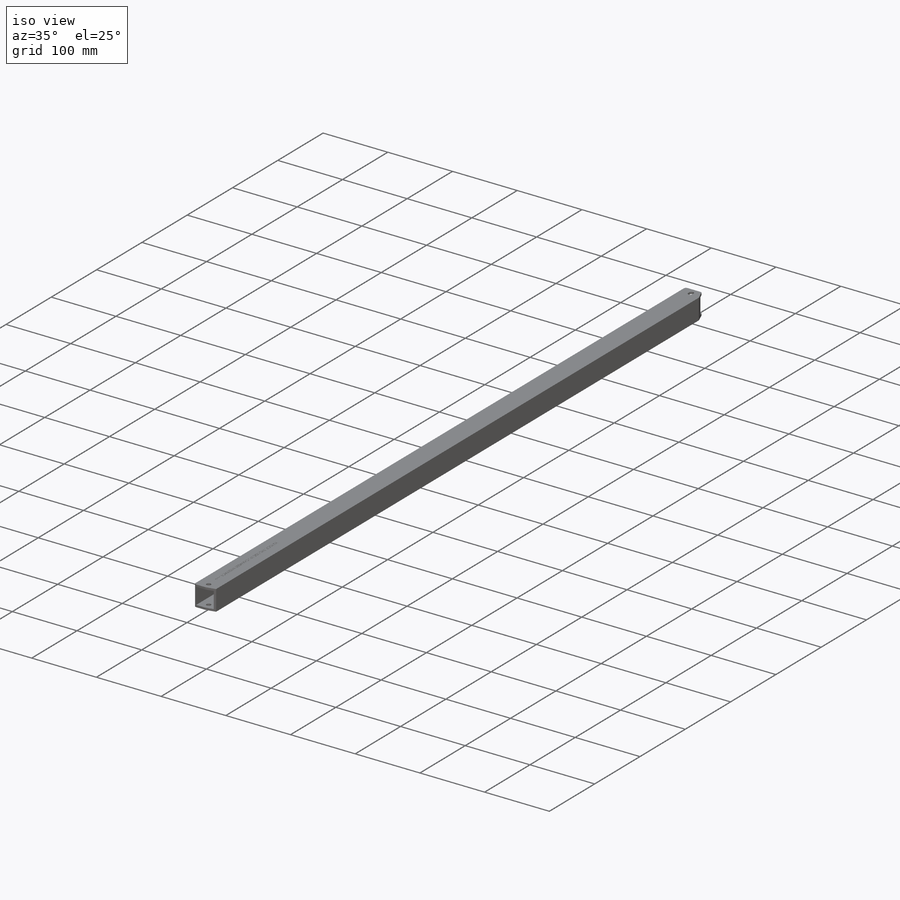
[diagram: iso view]
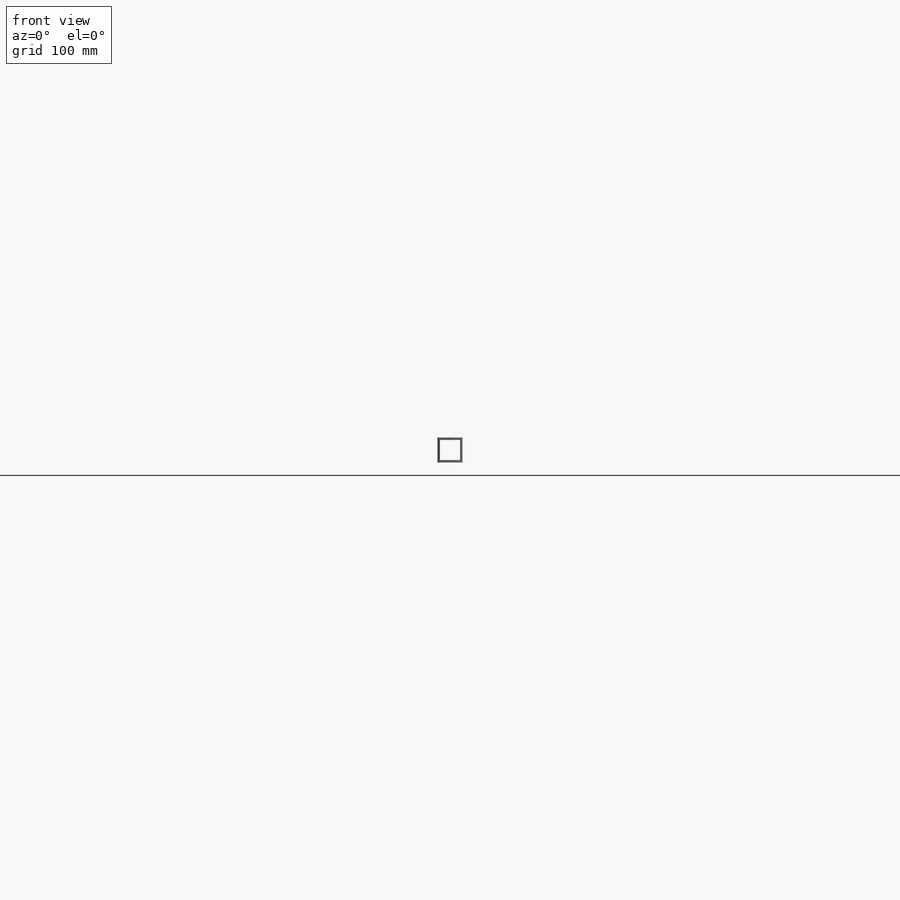
[diagram: front view]
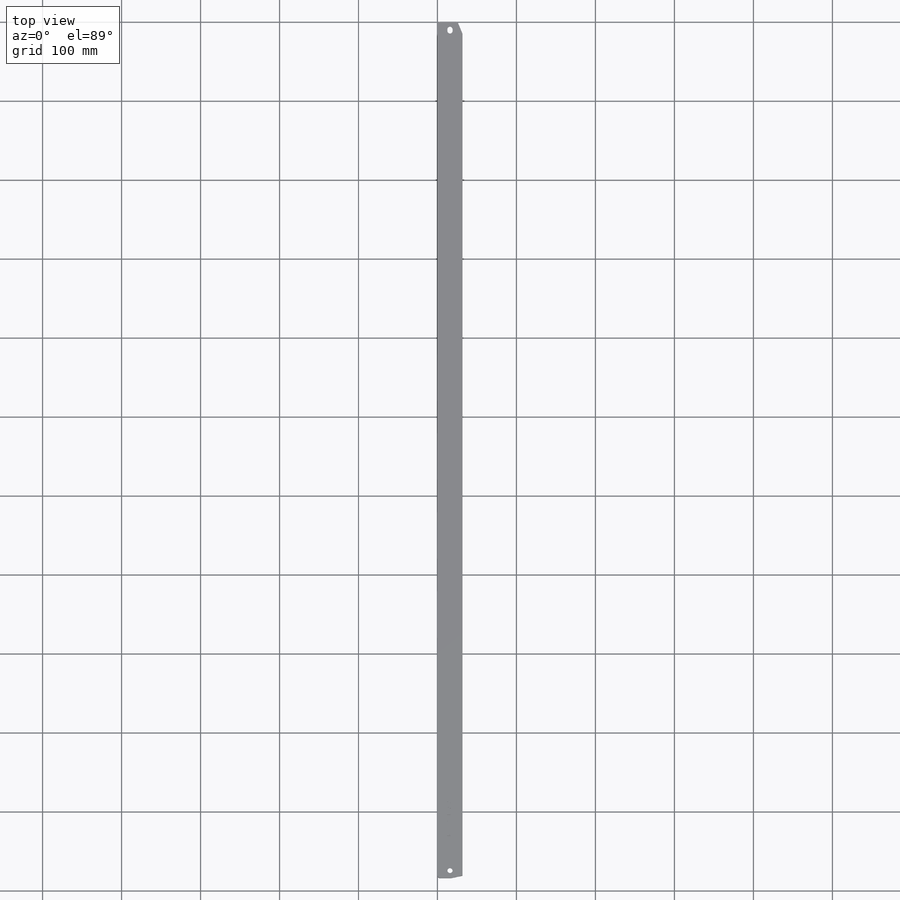
[diagram: top view]
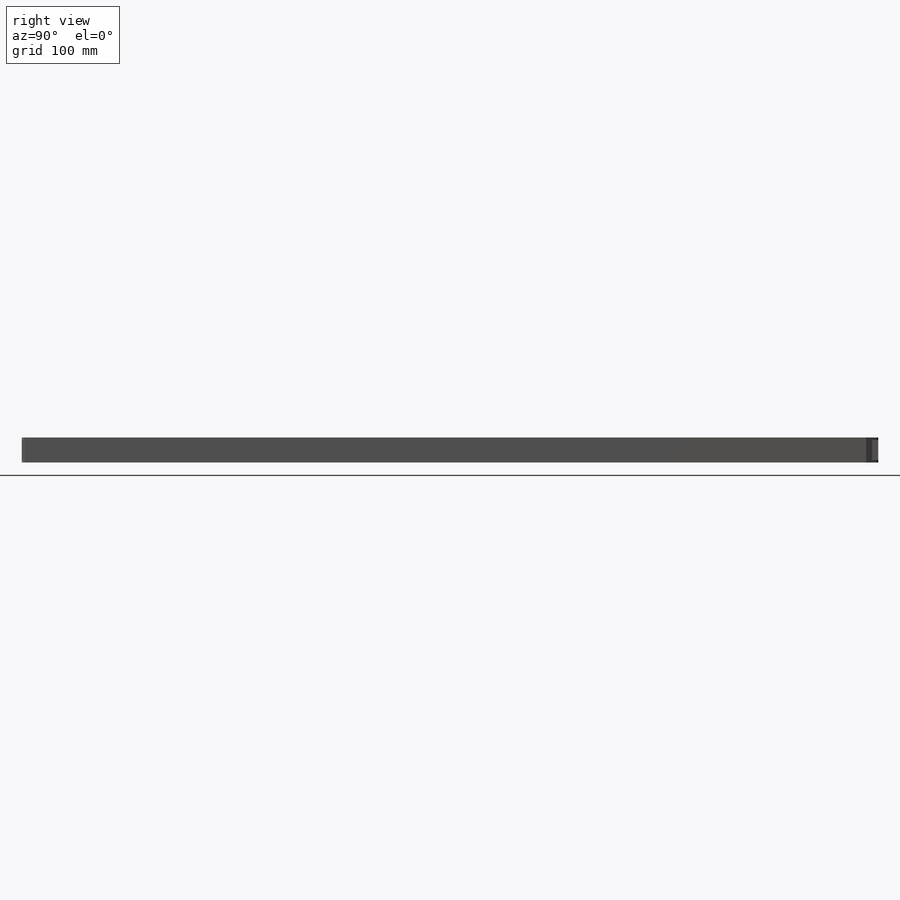
[diagram: right view]
SOLIDWORKS PART (.sldprt)
format: sldprt  version: not decoded by parser v0  size: 1,391,104 bytes
history: native  units: mm
features: sketch x12, cut_extrude x5, extrude x2, chamfer x2, fillet x2, material x1, hole x1 + 1 further entry (+12 scaffold rows collapsed)
feature tree (38):
  scaffold x12  (default folders/planes/origin — collapsed)
  material  "6063-T5"
  "Origin"  ID=-1
  sketch  "Sketch1"  dims[D1=31.6865mm D2=33.655mm]
  extrude  "Boss-Extrude1"  Depth=1084.2625mm
  sketch  "Sketch2"  dims[D1=3.175mm]
  cut_extrude  "Cut-Extrude1"  [1 undecoded]
  sketch  "Sketch3"
  sketch  "Sketch4"
  sketch  "Sketch6"  dims[c1.D1=6.604mm c1.D2=6.35mm c1.D4=3.302mm c1.D3=9.525mm c2.D4=9.525mm c2.D3=9.2075mm c3.D4=12.7mm c3.D5=9.525mm c3.D6=12.7mm c4.D4=12.7mm c4.D6=15.875mm c5.D4=15.875mm c5.D2=~15.84706mm c5.D7=2.54mm]
  cut_extrude  "Cut-Extrude3"  [1 undecoded]
  chamfer  "Chamfer1"  Distance=3.175mm Angle=77.45deg
  chamfer  "Chamfer2"  Distance=6.35mm Angle=67.5deg
  fillet  "Fillet1"  Radius=3.175mm
  fillet  "Fillet2"  Radius=3.175mm
  sketch  "Sketch7"  dims[c1.D1=6.35mm c1.D6=6.35mm c1.D2=12.7mm c1.D3=127.0mm c1.D4=215.9mm c1.D5=12.7mm c2.D2=12.7mm c2.D3=127.0mm c2.D4=254.0mm c2.D5=12.7mm]
  cut_extrude  "Cut-Extrude4"  [1 undecoded]
  hole  "#8 Clearance Hole1"  Diameter=4.4958mm Depth=31.6865mm
  sketch  "Sketch9"  dims[D1=254.0mm D2=254.0mm D3=254.0mm D4=127.0mm D5=~15.84706mm D6=~15.84706mm D7=~15.84706mm D8=~15.84706mm]
  sketch  "Sketch8"  dims[hole-wizard template sketch: 60 standard entries collapsed; hole parameters kept: c18.Thru Hole Depth=31.6865mm]
  sketch  "Sketch10"
  sketch  "Sketch11"
  extrude  "Axis2"  [1 undecoded]
  sketch  "Sketch12"
  cut_extrude  "Cut-Extrude5"  Depth=0.508mm
  sketch  "Sketch13"
  cut_extrude  "Cut-Extrude6"  Depth=0.508mm
decode coverage: 14 of 24 modeling features carry decoded parameters; 1 rows unclassified (native names shown)
note: ~ marks probable driven/reference dimensions
note: 4 parameter values undecoded
summary: no parameter record found for 4 features
note: suppression state not decoded; provenance and decode notes live in map.json
